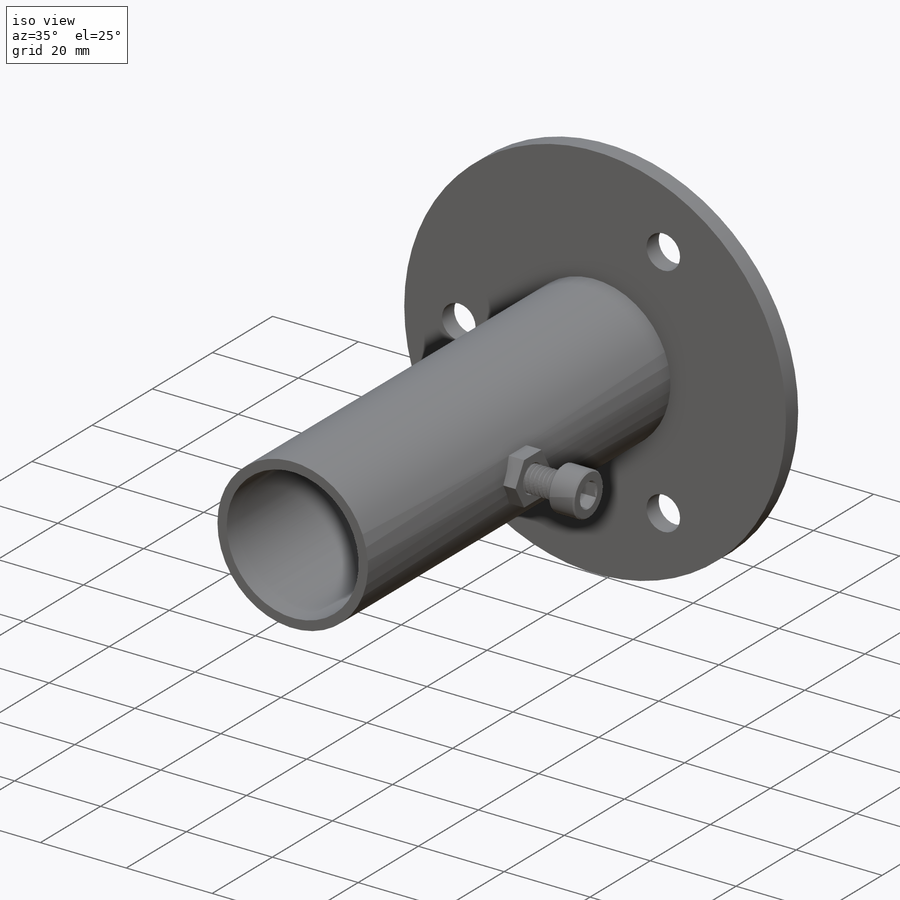
[diagram: iso view]
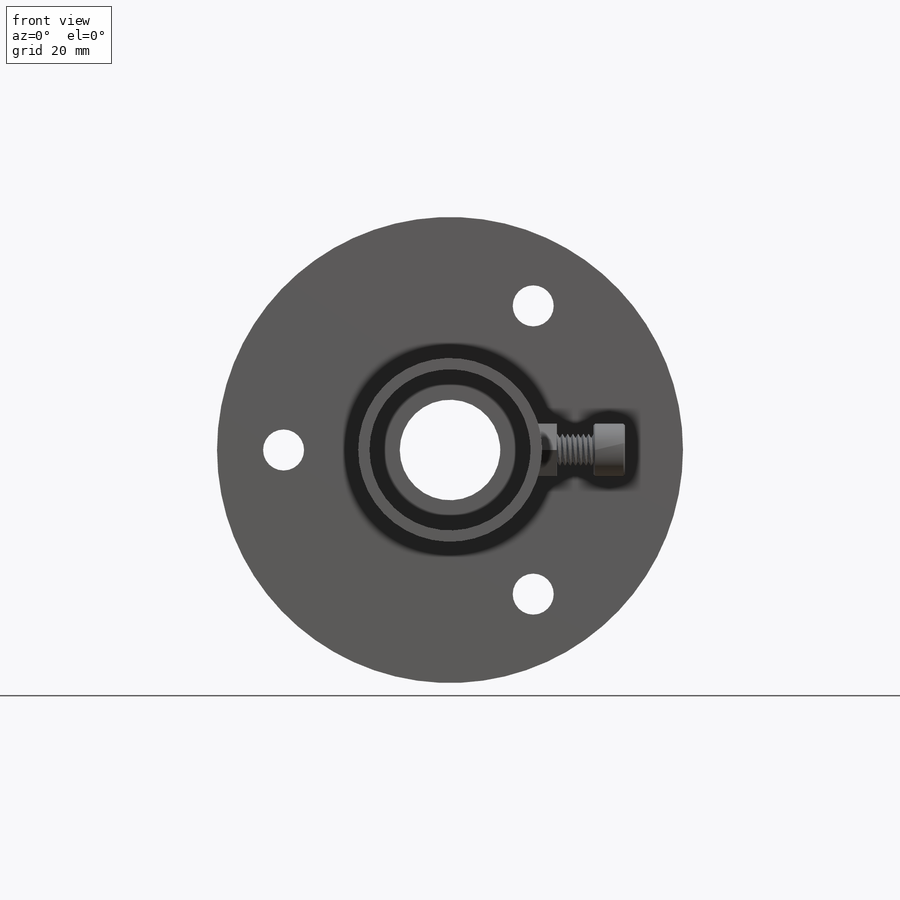
[diagram: front view]
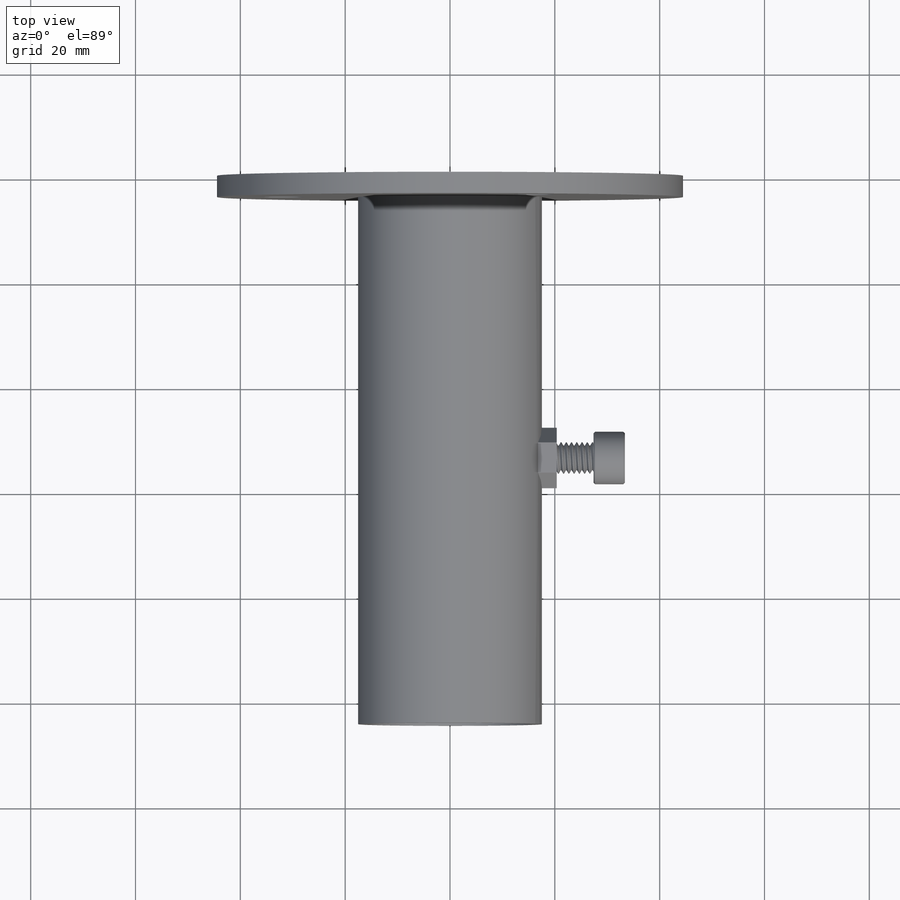
[diagram: top view]
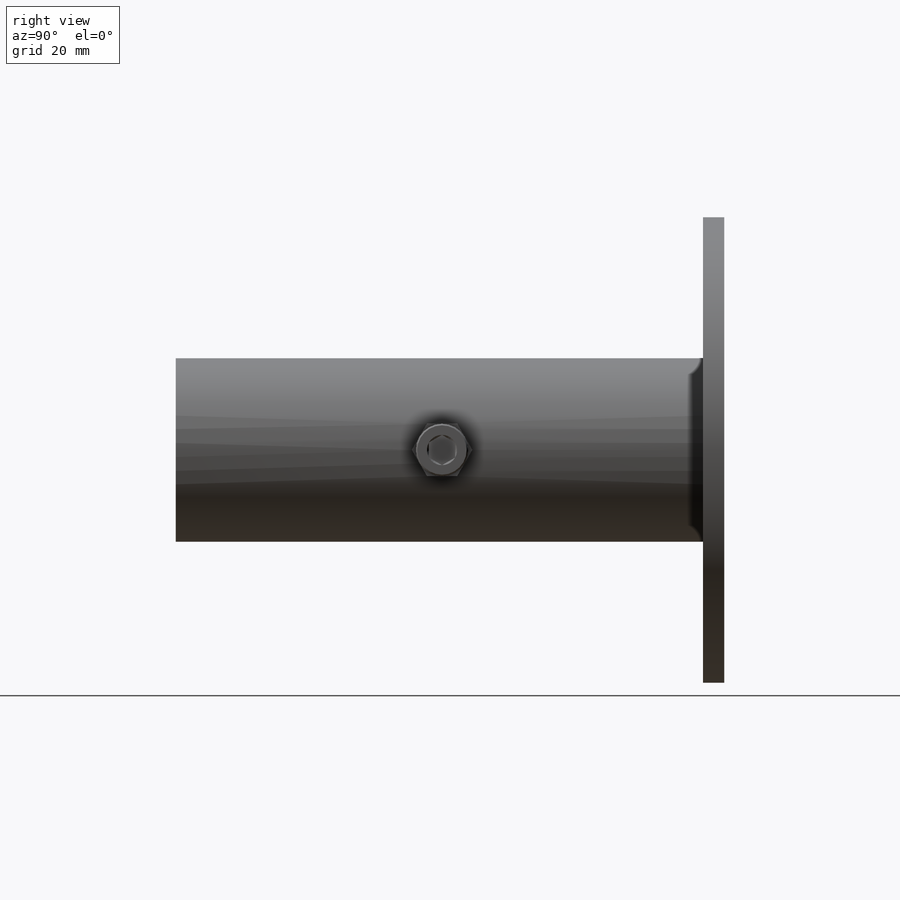
[diagram: right view]
SOLIDWORKS PART (.sldprt)
format: sldprt  version: not decoded by parser v0  size: 616,448 bytes
history: native  units: mm
features: sketch x14, extrude x5, cut_extrude x5, plane x2, chamfer x2, material x1, helix x1, sweep x1 (+14 scaffold rows collapsed)
feature tree (45):
  scaffold x14  (default folders/planes/origin — collapsed)
  material  "Material <not specified>"
  sketch  "Sketch1"  dims[c1.D1=88.9mm c1.D2=63.5mm c1.D3=35.052mm c1.D4=30.734mm c1.D5=7.8232mm c1.D6=19.177mm c2.D1=25.4mm c2.D2=38.1mm c2.D7=~54.992613mm]
  sketch  "Sketch2"  dims[c1.D1=5.715mm c1.D2=13.9954mm c1.D3=13.9954mm c2.D2=18.542mm c2.D3=12.827mm c2.D1=32.004mm c3.D3=15.113mm c3.D2=4.064mm c4.D3=32.004mm c4.D1=100.584mm c5.D3=50.8mm]
  sketch  "Sketch3"
  extrude  "Boss-Extrude1"  [1 undecoded]
  sketch  "Sketch4"
  cut_extrude  "Cut-Extrude2"  [1 undecoded]
  sketch  "Sketch5"
  extrude  "Boss-Extrude2"  [1 undecoded]
  sketch  "Sketch6"  dims[D1=10.0mm]
  cut_extrude  "Cut-Extrude3"  [1 undecoded]
  plane  "Plane1"
  sketch  "Sketch7"  dims[D2=6.0mm D1=0.0mm]
  extrude  "Boss-Extrude3"  Depth=5mm
  chamfer  "Chamfer1"  Distance=0.25mm Angle=45deg
  sketch  "Sketch8"  dims[D1=0.0mm D2=0.0mm]
  extrude  "Boss-Extrude4"  Depth=12mm
  sketch  "Sketch9"  dims[D1=0.0mm]
  helix  "Helix/Spiral1"  Pitch=13mm
  plane  "Plane2"
  sketch  "Sketch10"  dims[D1=1.0mm D2=0.125mm]
  sweep  "Cut-Sweep1"
  sketch  "Sketch11"
  cut_extrude  "Cut-Extrude4"  [1 undecoded]
  sketch  "Sketch12"  dims[D1=10.0mm]
  extrude  "Boss-Extrude5"  Depth=6mm
  chamfer  "Chamfer2"  Distance=0.3mm Angle=45deg
  sketch  "Sketch13"  dims[D1=5.0mm]
  cut_extrude  "Cut-Extrude5"  Depth=3.75mm
  sketch  "Sketch14"
  cut_extrude  "Cut-Extrude6"  [1 undecoded]
decode coverage: 16 of 28 modeling features carry decoded parameters
note: ~ marks probable driven/reference dimensions
note: 6 parameter values undecoded
summary: no parameter record found for 6 features
note: suppression state not decoded; provenance and decode notes live in map.json
